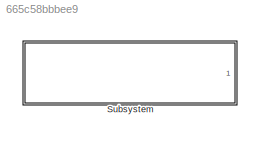
MODEL slx_665c58bbbee9
KIND model
CONFIG AbsTol = auto
CONFIG EnableMultiTasking = off
CONFIG FixedStep = auto
CONFIG MaxStep = auto
CONFIG MinStep = auto
CONFIG RelTol = 1e-3
CONFIG SampleTimeConstraint = Unconstrained
CONFIG Solver = VariableStepAuto
CONFIG SolverName = VariableStepAuto
CONFIG StartTime = 0.0
CONFIG StopTime = 10.0
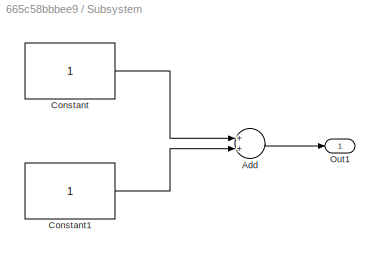
BLOCK [SubSystem] Subsystem
  Ports = [0, 1]
  RequestExecContextInheritance = off
BLOCK [Sum] Subsystem/Add
  InputSameDT = off
  OutDataTypeStr = Inherit: Inherit via internal rule
  Ports = [2, 1]
  SaturateOnIntegerOverflow = off
BLOCK [Constant] Subsystem/Constant
  OpenFcn = uiwait(msgbox("mk"));
BLOCK [Constant] Subsystem/Constant1
  OpenFcn = uiwait(msgbox("mk"));
BLOCK [Outport] Subsystem/Out1
  IconDisplay = Port number
LINE Subsystem/Add:1 -> Subsystem/Out1:1
LINE Subsystem/Constant1:1 -> Subsystem/Add:2
LINE Subsystem/Constant:1 -> Subsystem/Add:1
